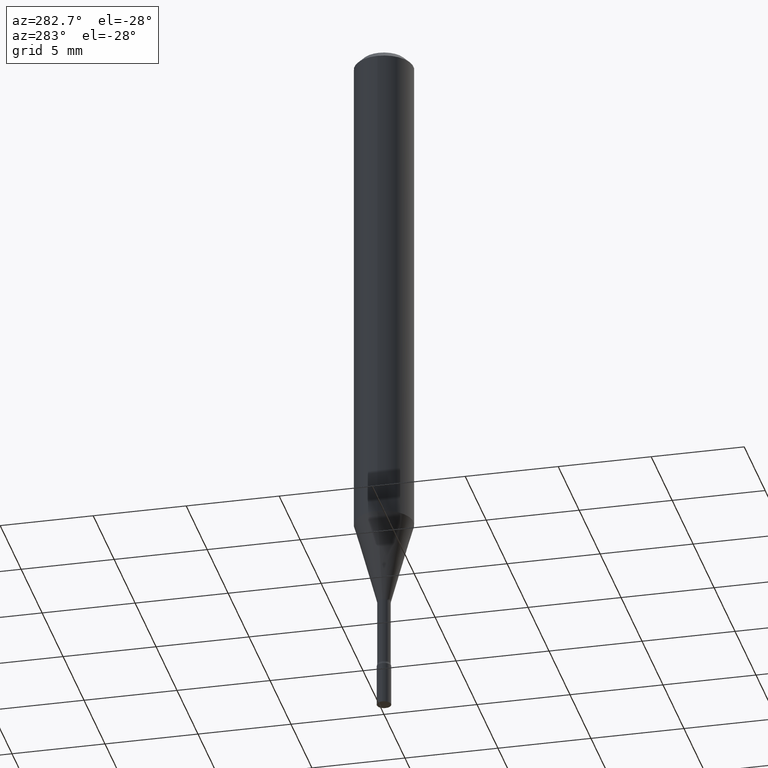
[diagram: clean part render]
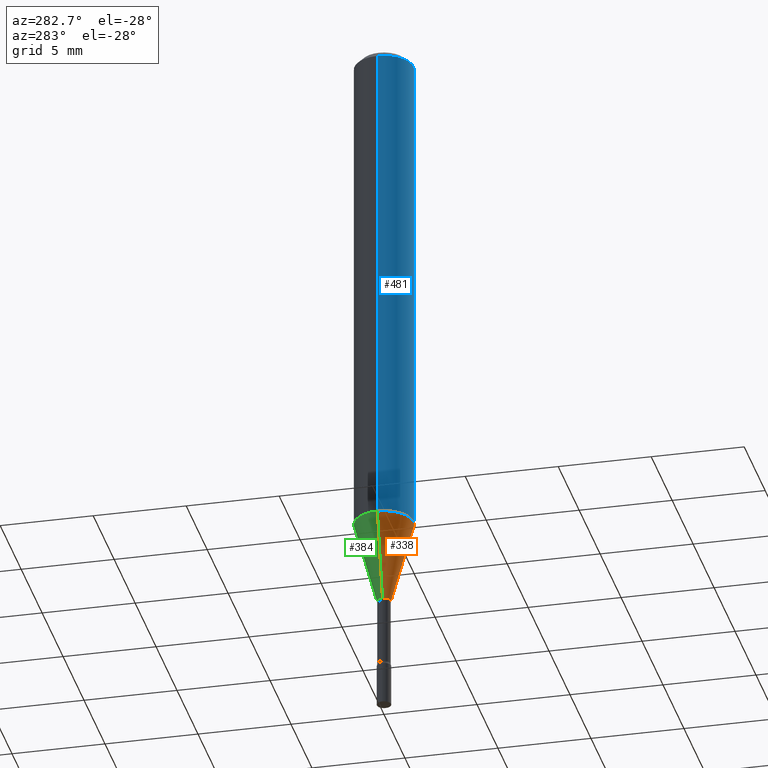
[diagram: same view with three faces highlighted in distinct colors, each labeled with its STEP entity id]
A machine part, auxiliary view with three faces highlighted in distinct colors.
Their STEP definitions:

[orange] entity #338 — the highlighted conical surface has half-angle 15 deg.
#16 = ORIENTED_EDGE ( 'NONE', *, *, #251, .F. ) ;
#20 = CONICAL_SURFACE ( 'NONE', #295, 0.01461111260566397979, 0.2617993877991497964 ) ;
#66 = EDGE_CURVE ( 'NONE', #178, #285, #192, .T. ) ;
#77 = LINE ( 'NONE', #150, #309 ) ;
#87 = DIRECTION ( 'NONE',  ( 1.000000000000000000, -6.982962677686246200E-15, 0.000000000000000000 ) ) ;
#117 = DIRECTION ( 'NONE',  ( -0.2588190451025211281, 5.211531920934548675E-15, 0.9659258262890682012 ) ) ;
#148 = DIRECTION ( 'NONE',  ( -2.445468806185136597E-29, 3.491481338843145583E-15, 1.000000000000000000 ) ) ;
#150 = CARTESIAN_POINT ( 'NONE',  ( -0.01461111260566397979, -4.288788293295477803E-15, -1.258092501787273276 ) ) ;
#157 = CARTESIAN_POINT ( 'NONE',  ( 0.06250000000000001388, -4.205030983986081256E-15, -1.079368740913666747 ) ) ;
#167 = DIRECTION ( 'NONE',  ( -2.445468806185136597E-29, 3.491481338843145583E-15, 1.000000000000000000 ) ) ;
#176 = EDGE_LOOP ( 'NONE', ( #355, #246, #310, #16 ) ) ;
#178 = VERTEX_POINT ( 'NONE', #300 ) ;
#192 = CIRCLE ( 'NONE', #238, 0.01461111260566397979 ) ;
#238 = AXIS2_PLACEMENT_3D ( 'NONE', #456, #167, #87 ) ;
#246 = ORIENTED_EDGE ( 'NONE', *, *, #66, .T. ) ;
#251 = EDGE_CURVE ( 'NONE', #506, #465, #484, .T. ) ;
#274 = DIRECTION ( 'NONE',  ( 1.000000000000000000, -6.982962677686262766E-15, 0.000000000000000000 ) ) ;
#285 = VERTEX_POINT ( 'NONE', #430 ) ;
#295 = AXIS2_PLACEMENT_3D ( 'NONE', #312, #148, #467 ) ;
#300 = CARTESIAN_POINT ( 'NONE',  ( -0.01461111260566397979, -3.806647450038052387E-15, -1.258092501787273276 ) ) ;
#307 = FACE_OUTER_BOUND ( 'NONE', #176, .T. ) ;
#309 = VECTOR ( 'NONE', #117, 39.37007874015748143 ) ;
#310 = ORIENTED_EDGE ( 'NONE', *, *, #391, .T. ) ;
#312 = CARTESIAN_POINT ( 'NONE',  ( 3.076625968416195482E-29, -4.392606492528752047E-15, -1.258092501787273276 ) ) ;
#314 = CARTESIAN_POINT ( 'NONE',  ( -0.06250000000000001388, -3.324506606780626970E-15, -1.079368740913666747 ) ) ;
#319 = VECTOR ( 'NONE', #323, 39.37007874015748143 ) ;
#323 = DIRECTION ( 'NONE',  ( 0.2588190451025211281, 1.565188264969623940E-15, 0.9659258262890682012 ) ) ;
#324 = AXIS2_PLACEMENT_3D ( 'NONE', #425, #427, #274 ) ;
#338 = ADVANCED_FACE ( 'NONE', ( #307 ), #20, .T. ) ;
#355 = ORIENTED_EDGE ( 'NONE', *, *, #422, .F. ) ;
#366 = CARTESIAN_POINT ( 'NONE',  ( 0.01461111260566397979, -4.494635346533574839E-15, -1.258092501787273276 ) ) ;
#391 = EDGE_CURVE ( 'NONE', #285, #465, #441, .T. ) ;
#422 = EDGE_CURVE ( 'NONE', #178, #506, #77, .T. ) ;
#425 = CARTESIAN_POINT ( 'NONE',  ( 2.639562586275698746E-29, -3.768595816630689586E-15, -1.079368740913666747 ) ) ;
#427 = DIRECTION ( 'NONE',  ( -2.445468806185136597E-29, 3.491481338843145583E-15, 1.000000000000000000 ) ) ;
#430 = CARTESIAN_POINT ( 'NONE',  ( 0.01461111260566397979, -4.494635346533574839E-15, -1.258092501787273276 ) ) ;
#441 = LINE ( 'NONE', #366, #319 ) ;
#456 = CARTESIAN_POINT ( 'NONE',  ( 3.076625968416195482E-29, -4.392606492528752047E-15, -1.258092501787273276 ) ) ;
#465 = VERTEX_POINT ( 'NONE', #157 ) ;
#467 = DIRECTION ( 'NONE',  ( 1.000000000000000000, -6.982962677686246200E-15, 0.000000000000000000 ) ) ;
#484 = CIRCLE ( 'NONE', #324, 0.06250000000000000000 ) ;
#506 = VERTEX_POINT ( 'NONE', #314 ) ;

[blue] entity #481 — the highlighted cylindrical surface (edge-blend (fillet) strip) has radius 1.5875 mm, axis along (-0, 0, 1).
#30 = ORIENTED_EDGE ( 'NONE', *, *, #171, .F. ) ;
#58 = ORIENTED_EDGE ( 'NONE', *, *, #367, .F. ) ;
#60 = ORIENTED_EDGE ( 'NONE', *, *, #490, .T. ) ;
#70 = LINE ( 'NONE', #361, #449 ) ;
#74 = DIRECTION ( 'NONE',  ( -2.445468806185136597E-29, 3.491481338843145583E-15, 1.000000000000000000 ) ) ;
#78 = VERTEX_POINT ( 'NONE', #220 ) ;
#80 = CARTESIAN_POINT ( 'NONE',  ( 0.000000000000000000, 0.000000000000000000, 0.000000000000000000 ) ) ;
#132 = DIRECTION ( 'NONE',  ( 1.000000000000000000, -6.982962677686266711E-15, 4.876176775795935793E-29 ) ) ;
#134 = CARTESIAN_POINT ( 'NONE',  ( -0.06250000000000000000, 4.440892098500626162E-16, -3.074334431409316114E-30 ) ) ;
#136 = AXIS2_PLACEMENT_3D ( 'NONE', #303, #74, #435 ) ;
#156 = DIRECTION ( 'NONE',  ( -2.445468806185136877E-29, 3.491481338843145188E-15, 1.000000000000000000 ) ) ;
#157 = CARTESIAN_POINT ( 'NONE',  ( 0.06250000000000001388, -4.205030983986081256E-15, -1.079368740913666747 ) ) ;
#159 = DIRECTION ( 'NONE',  ( -2.445468806185136597E-29, 3.491481338843145583E-15, 1.000000000000000000 ) ) ;
#171 = EDGE_CURVE ( 'NONE', #506, #515, #293, .T. ) ;
#220 = CARTESIAN_POINT ( 'NONE',  ( 0.06250000000000000000, -4.888073874380389458E-16, -0.01500000000000003067 ) ) ;
#241 = CARTESIAN_POINT ( 'NONE',  ( -0.06250000000000000000, -1.466394808506605914E-15, -0.01500000000000003067 ) ) ;
#251 = EDGE_CURVE ( 'NONE', #506, #465, #484, .T. ) ;
#269 = CIRCLE ( 'NONE', #136, 0.06250000000000000000 ) ;
#274 = DIRECTION ( 'NONE',  ( 1.000000000000000000, -6.982962677686262766E-15, 0.000000000000000000 ) ) ;
#287 = CYLINDRICAL_SURFACE ( 'NONE', #493, 0.06250000000000000000 ) ;
#293 = LINE ( 'NONE', #134, #331 ) ;
#303 = CARTESIAN_POINT ( 'NONE',  ( 3.668203209277712094E-31, -5.237222008264728876E-17, -0.01500000000000003067 ) ) ;
#314 = CARTESIAN_POINT ( 'NONE',  ( -0.06250000000000001388, -3.324506606780626970E-15, -1.079368740913666747 ) ) ;
#322 = FACE_OUTER_BOUND ( 'NONE', #369, .T. ) ;
#324 = AXIS2_PLACEMENT_3D ( 'NONE', #425, #427, #274 ) ;
#331 = VECTOR ( 'NONE', #421, 39.37007874015748143 ) ;
#361 = CARTESIAN_POINT ( 'NONE',  ( 0.06250000000000000000, -4.364351673553916694E-16, 3.047610484872459871E-30 ) ) ;
#367 = EDGE_CURVE ( 'NONE', #515, #78, #269, .T. ) ;
#369 = EDGE_LOOP ( 'NONE', ( #30, #503, #60, #58 ) ) ;
#421 = DIRECTION ( 'NONE',  ( -2.445468806185136877E-29, 3.491481338843145188E-15, 1.000000000000000000 ) ) ;
#425 = CARTESIAN_POINT ( 'NONE',  ( 2.639562586275698746E-29, -3.768595816630689586E-15, -1.079368740913666747 ) ) ;
#427 = DIRECTION ( 'NONE',  ( -2.445468806185136597E-29, 3.491481338843145583E-15, 1.000000000000000000 ) ) ;
#435 = DIRECTION ( 'NONE',  ( 1.000000000000000000, -6.982962677686266711E-15, 0.000000000000000000 ) ) ;
#449 = VECTOR ( 'NONE', #156, 39.37007874015748143 ) ;
#465 = VERTEX_POINT ( 'NONE', #157 ) ;
#481 = ADVANCED_FACE ( 'NONE', ( #322 ), #287, .T. ) ;
#484 = CIRCLE ( 'NONE', #324, 0.06250000000000000000 ) ;
#490 = EDGE_CURVE ( 'NONE', #465, #78, #70, .T. ) ;
#493 = AXIS2_PLACEMENT_3D ( 'NONE', #80, #159, #132 ) ;
#503 = ORIENTED_EDGE ( 'NONE', *, *, #251, .T. ) ;
#506 = VERTEX_POINT ( 'NONE', #314 ) ;
#515 = VERTEX_POINT ( 'NONE', #241 ) ;

[green] entity #384 — the highlighted conical surface has half-angle 15 deg.
#23 = DIRECTION ( 'NONE',  ( -2.445468806185136597E-29, 3.491481338843145583E-15, 1.000000000000000000 ) ) ;
#25 = AXIS2_PLACEMENT_3D ( 'NONE', #202, #165, #516 ) ;
#41 = DIRECTION ( 'NONE',  ( 1.000000000000000000, -6.982962677686246200E-15, 0.000000000000000000 ) ) ;
#59 = EDGE_LOOP ( 'NONE', ( #470, #297, #336, #112 ) ) ;
#77 = LINE ( 'NONE', #150, #309 ) ;
#112 = ORIENTED_EDGE ( 'NONE', *, *, #391, .F. ) ;
#117 = DIRECTION ( 'NONE',  ( -0.2588190451025211281, 5.211531920934548675E-15, 0.9659258262890682012 ) ) ;
#144 = AXIS2_PLACEMENT_3D ( 'NONE', #343, #23, #468 ) ;
#150 = CARTESIAN_POINT ( 'NONE',  ( -0.01461111260566397979, -4.288788293295477803E-15, -1.258092501787273276 ) ) ;
#157 = CARTESIAN_POINT ( 'NONE',  ( 0.06250000000000001388, -4.205030983986081256E-15, -1.079368740913666747 ) ) ;
#165 = DIRECTION ( 'NONE',  ( -2.445468806185136597E-29, 3.491481338843145583E-15, 1.000000000000000000 ) ) ;
#174 = CONICAL_SURFACE ( 'NONE', #426, 0.01461111260566397979, 0.2617993877991497964 ) ;
#178 = VERTEX_POINT ( 'NONE', #300 ) ;
#182 = CIRCLE ( 'NONE', #144, 0.01461111260566397979 ) ;
#202 = CARTESIAN_POINT ( 'NONE',  ( 2.639562586275698746E-29, -3.768595816630689586E-15, -1.079368740913666747 ) ) ;
#233 = CIRCLE ( 'NONE', #25, 0.06250000000000000000 ) ;
#252 = DIRECTION ( 'NONE',  ( -2.445468806185136597E-29, 3.491481338843145583E-15, 1.000000000000000000 ) ) ;
#284 = EDGE_CURVE ( 'NONE', #285, #178, #182, .T. ) ;
#285 = VERTEX_POINT ( 'NONE', #430 ) ;
#297 = ORIENTED_EDGE ( 'NONE', *, *, #422, .T. ) ;
#300 = CARTESIAN_POINT ( 'NONE',  ( -0.01461111260566397979, -3.806647450038052387E-15, -1.258092501787273276 ) ) ;
#309 = VECTOR ( 'NONE', #117, 39.37007874015748143 ) ;
#314 = CARTESIAN_POINT ( 'NONE',  ( -0.06250000000000001388, -3.324506606780626970E-15, -1.079368740913666747 ) ) ;
#319 = VECTOR ( 'NONE', #323, 39.37007874015748143 ) ;
#323 = DIRECTION ( 'NONE',  ( 0.2588190451025211281, 1.565188264969623940E-15, 0.9659258262890682012 ) ) ;
#336 = ORIENTED_EDGE ( 'NONE', *, *, #440, .F. ) ;
#343 = CARTESIAN_POINT ( 'NONE',  ( 3.076625968416195482E-29, -4.392606492528752047E-15, -1.258092501787273276 ) ) ;
#366 = CARTESIAN_POINT ( 'NONE',  ( 0.01461111260566397979, -4.494635346533574839E-15, -1.258092501787273276 ) ) ;
#384 = ADVANCED_FACE ( 'NONE', ( #474 ), #174, .T. ) ;
#391 = EDGE_CURVE ( 'NONE', #285, #465, #441, .T. ) ;
#422 = EDGE_CURVE ( 'NONE', #178, #506, #77, .T. ) ;
#426 = AXIS2_PLACEMENT_3D ( 'NONE', #480, #252, #41 ) ;
#430 = CARTESIAN_POINT ( 'NONE',  ( 0.01461111260566397979, -4.494635346533574839E-15, -1.258092501787273276 ) ) ;
#440 = EDGE_CURVE ( 'NONE', #465, #506, #233, .T. ) ;
#441 = LINE ( 'NONE', #366, #319 ) ;
#465 = VERTEX_POINT ( 'NONE', #157 ) ;
#468 = DIRECTION ( 'NONE',  ( 1.000000000000000000, -6.982962677686246200E-15, 0.000000000000000000 ) ) ;
#470 = ORIENTED_EDGE ( 'NONE', *, *, #284, .T. ) ;
#474 = FACE_OUTER_BOUND ( 'NONE', #59, .T. ) ;
#480 = CARTESIAN_POINT ( 'NONE',  ( 3.076625968416195482E-29, -4.392606492528752047E-15, -1.258092501787273276 ) ) ;
#506 = VERTEX_POINT ( 'NONE', #314 ) ;
#516 = DIRECTION ( 'NONE',  ( 1.000000000000000000, -6.982962677686262766E-15, 0.000000000000000000 ) ) ;